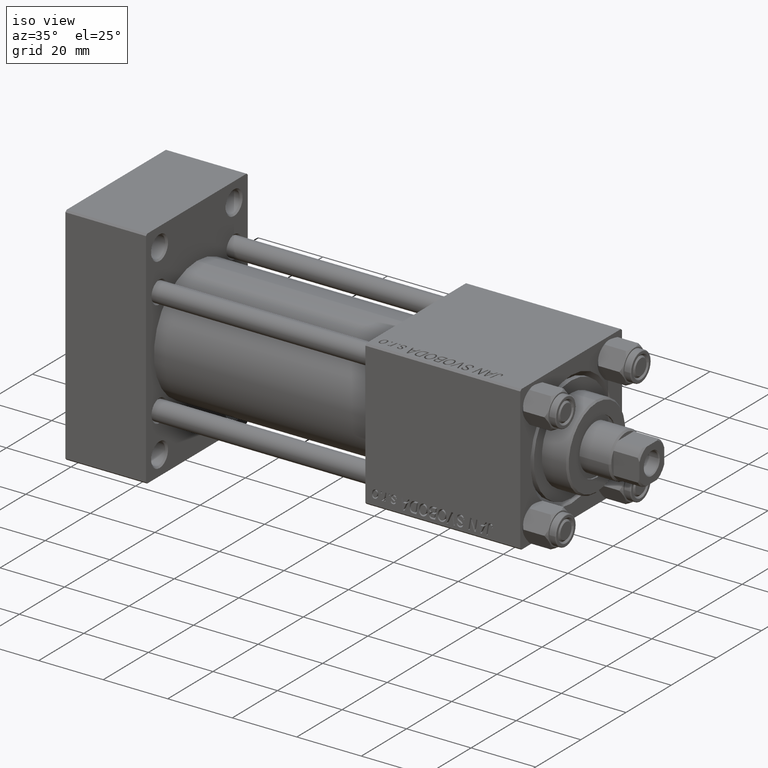
[diagram: clean part render]
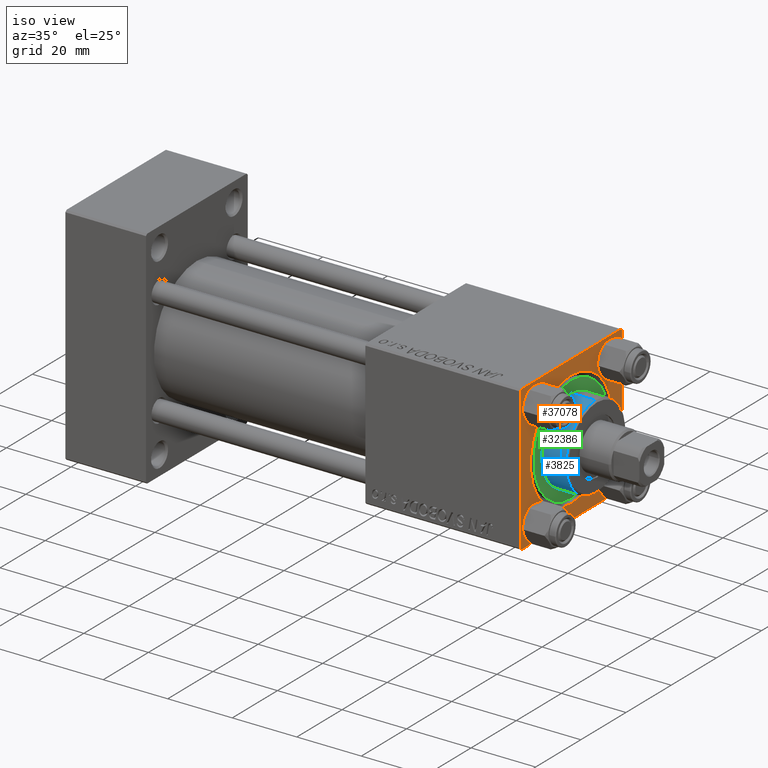
[diagram: same view with three faces highlighted in distinct colors, each labeled with its STEP entity id]
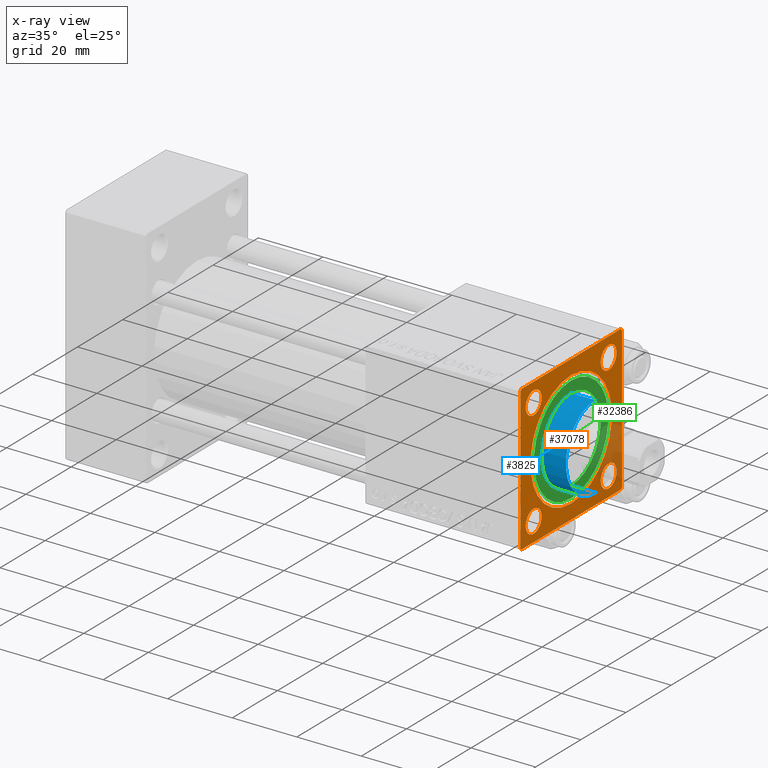
[diagram: x-ray of the same camera — body ghosted, the three highlighted faces saturated]
A machine part, iso view with three faces highlighted in distinct colors.
The next image is the same camera in x-ray (body ghosted, the three faces saturated) — at least one of them is partly hidden behind the body in this view.
Their STEP definitions:

[orange] entity #37078 — the highlighted planar face has unit normal (-1, 0, 0).
#421 = VERTEX_POINT ( 'NONE', #45693 ) ;
#465 = ORIENTED_EDGE ( 'NONE', *, *, #37097, .T. ) ;
#590 = CARTESIAN_POINT ( 'NONE',  ( 141.0000000000000000, -16.59999999999999076, -16.60000000000000853 ) ) ;
#1348 = AXIS2_PLACEMENT_3D ( 'NONE', #10094, #28100, #32834 ) ;
#1581 = ORIENTED_EDGE ( 'NONE', *, *, #31186, .T. ) ;
#2479 = FACE_BOUND ( 'NONE', #6831, .T. ) ;
#2649 = VERTEX_POINT ( 'NONE', #18357 ) ;
#3163 = ORIENTED_EDGE ( 'NONE', *, *, #4531, .T. ) ;
#4026 = EDGE_CURVE ( 'NONE', #45760, #421, #37947, .T. ) ;
#4219 = CARTESIAN_POINT ( 'NONE',  ( 141.0000000000000000, 22.50000000000000355, 22.50000000000000355 ) ) ;
#4303 = EDGE_CURVE ( 'NONE', #13344, #33325, #8324, .T. ) ;
#4531 = EDGE_CURVE ( 'NONE', #22749, #49501, #22036, .T. ) ;
#4704 = DIRECTION ( 'NONE',  ( -1.000000000000000000, 0.000000000000000000, -0.000000000000000000 ) ) ;
#4739 = LINE ( 'NONE', #35793, #49555 ) ;
#6005 = DIRECTION ( 'NONE',  ( -1.000000000000000000, 0.000000000000000000, -0.000000000000000000 ) ) ;
#6831 = EDGE_LOOP ( 'NONE', ( #25632, #24927 ) ) ;
#7315 = CARTESIAN_POINT ( 'NONE',  ( 141.0000000000000000, 16.59999999999999787, 16.60000000000000497 ) ) ;
#7625 = CARTESIAN_POINT ( 'NONE',  ( 141.0000000000000000, 22.50000000000000355, 22.50000000000000355 ) ) ;
#7854 = CARTESIAN_POINT ( 'NONE',  ( 141.0000000000000000, 0.000000000000000000, 0.000000000000000000 ) ) ;
#8324 = CIRCLE ( 'NONE', #30903, 3.500000000000003109 ) ;
#8398 = EDGE_CURVE ( 'NONE', #33750, #25118, #20079, .T. ) ;
#9645 = CARTESIAN_POINT ( 'NONE',  ( 141.0000000000000000, 16.59999999999999787, 16.60000000000000497 ) ) ;
#10058 = CIRCLE ( 'NONE', #21333, 3.500000000000003109 ) ;
#10094 = CARTESIAN_POINT ( 'NONE',  ( 141.0000000000000000, 0.000000000000000000, 0.000000000000000000 ) ) ;
#10303 = DIRECTION ( 'NONE',  ( -0.000000000000000000, 0.000000000000000000, 1.000000000000000000 ) ) ;
#10668 = EDGE_CURVE ( 'NONE', #33325, #13344, #39155, .T. ) ;
#10927 = AXIS2_PLACEMENT_3D ( 'NONE', #45394, #6005, #10303 ) ;
#11504 = CARTESIAN_POINT ( 'NONE',  ( 141.0000000000000000, -16.59999999999999076, 20.10000000000000853 ) ) ;
#11738 = AXIS2_PLACEMENT_3D ( 'NONE', #9645, #25036, #20751 ) ;
#11940 = AXIS2_PLACEMENT_3D ( 'NONE', #32397, #17743, #28865 ) ;
#12310 = DIRECTION ( 'NONE',  ( 0.000000000000000000, 0.000000000000000000, -1.000000000000000000 ) ) ;
#12459 = CARTESIAN_POINT ( 'NONE',  ( 141.0000000000000000, 16.59999999999999787, 20.10000000000000853 ) ) ;
#13154 = CARTESIAN_POINT ( 'NONE',  ( 141.0000000000000000, 16.59999999999999787, -13.10000000000000142 ) ) ;
#13344 = VERTEX_POINT ( 'NONE', #12459 ) ;
#13395 = ORIENTED_EDGE ( 'NONE', *, *, #10668, .T. ) ;
#13420 = EDGE_CURVE ( 'NONE', #27967, #43355, #46535, .T. ) ;
#13965 = CARTESIAN_POINT ( 'NONE',  ( 141.0000000000000000, -16.59999999999999076, -13.10000000000000320 ) ) ;
#14142 = CARTESIAN_POINT ( 'NONE',  ( 141.0000000000000000, -16.59999999999999076, 16.60000000000000853 ) ) ;
#14333 = PLANE ( 'NONE',  #10927 ) ;
#14559 = EDGE_LOOP ( 'NONE', ( #13395, #44836 ) ) ;
#14577 = FACE_BOUND ( 'NONE', #21387, .T. ) ;
#15011 = AXIS2_PLACEMENT_3D ( 'NONE', #14142, #15125, #38372 ) ;
#15125 = DIRECTION ( 'NONE',  ( -1.000000000000000000, 0.000000000000000000, -0.000000000000000000 ) ) ;
#15415 = CARTESIAN_POINT ( 'NONE',  ( 141.0000000000000000, 22.50000000000000355, -22.49999999999999645 ) ) ;
#16050 = CARTESIAN_POINT ( 'NONE',  ( 141.0000000000000000, -22.49999999999999645, 22.00000000000002132 ) ) ;
#16768 = CARTESIAN_POINT ( 'NONE',  ( 141.0000000000000000, -21.99999999999998224, -22.50000000000000000 ) ) ;
#16882 = DIRECTION ( 'NONE',  ( -0.000000000000000000, 0.7071067811865573427, 0.7071067811865378028 ) ) ;
#17543 = AXIS2_PLACEMENT_3D ( 'NONE', #20580, #4704, #19843 ) ;
#17743 = DIRECTION ( 'NONE',  ( -1.000000000000000000, 0.000000000000000000, -0.000000000000000000 ) ) ;
#18100 = LINE ( 'NONE', #33529, #18158 ) ;
#18158 = VECTOR ( 'NONE', #37820, 1000.000000000000114 ) ;
#18357 = CARTESIAN_POINT ( 'NONE',  ( 141.0000000000000000, -16.59999999999999076, -20.10000000000000853 ) ) ;
#18361 = CARTESIAN_POINT ( 'NONE',  ( 141.0000000000000000, -22.49999999999999645, 22.00000000000002132 ) ) ;
#18492 = CARTESIAN_POINT ( 'NONE',  ( 141.0000000000000000, -21.99999999999996803, -22.50000000000000000 ) ) ;
#18653 = EDGE_LOOP ( 'NONE', ( #22084, #26046 ) ) ;
#18722 = DIRECTION ( 'NONE',  ( 0.000000000000000000, 0.000000000000000000, 1.000000000000000000 ) ) ;
#19220 = ORIENTED_EDGE ( 'NONE', *, *, #46702, .T. ) ;
#19242 = CARTESIAN_POINT ( 'NONE',  ( 141.0000000000000000, -16.59999999999999076, -16.60000000000000853 ) ) ;
#19606 = DIRECTION ( 'NONE',  ( 0.000000000000000000, 0.000000000000000000, -1.000000000000000000 ) ) ;
#19843 = DIRECTION ( 'NONE',  ( 0.000000000000000000, 0.000000000000000000, 1.000000000000000000 ) ) ;
#20079 = LINE ( 'NONE', #16768, #35081 ) ;
#20580 = CARTESIAN_POINT ( 'NONE',  ( 141.0000000000000000, 16.59999999999999787, -16.60000000000000497 ) ) ;
#20583 = VERTEX_POINT ( 'NONE', #13154 ) ;
#20684 = CIRCLE ( 'NONE', #15011, 3.500000000000003109 ) ;
#20751 = DIRECTION ( 'NONE',  ( 0.000000000000000000, 0.000000000000000000, 1.000000000000000000 ) ) ;
#20924 = CARTESIAN_POINT ( 'NONE',  ( 141.0000000000000000, -16.59999999999999076, 16.60000000000000853 ) ) ;
#20966 = ORIENTED_EDGE ( 'NONE', *, *, #47186, .T. ) ;
#21229 = VECTOR ( 'NONE', #16882, 1000.000000000000000 ) ;
#21296 = AXIS2_PLACEMENT_3D ( 'NONE', #7854, #23252, #31340 ) ;
#21333 = AXIS2_PLACEMENT_3D ( 'NONE', #590, #39729, #23566 ) ;
#21387 = EDGE_LOOP ( 'NONE', ( #20966, #19220 ) ) ;
#21589 = EDGE_CURVE ( 'NONE', #421, #22721, #32537, .T. ) ;
#21763 = ORIENTED_EDGE ( 'NONE', *, *, #33984, .T. ) ;
#21897 = FACE_BOUND ( 'NONE', #27546, .T. ) ;
#22036 = CIRCLE ( 'NONE', #38976, 3.500000000000003109 ) ;
#22084 = ORIENTED_EDGE ( 'NONE', *, *, #39187, .T. ) ;
#22145 = EDGE_CURVE ( 'NONE', #45507, #25118, #49050, .T. ) ;
#22341 = DIRECTION ( 'NONE',  ( -1.000000000000000000, 0.000000000000000000, -0.000000000000000000 ) ) ;
#22721 = VERTEX_POINT ( 'NONE', #16050 ) ;
#22749 = VERTEX_POINT ( 'NONE', #11504 ) ;
#23252 = DIRECTION ( 'NONE',  ( -1.000000000000000000, 0.000000000000000000, -0.000000000000000000 ) ) ;
#23376 = CARTESIAN_POINT ( 'NONE',  ( 141.0000000000000000, 22.00000000000000355, 22.50000000000000355 ) ) ;
#23566 = DIRECTION ( 'NONE',  ( 0.000000000000000000, 0.000000000000000000, 1.000000000000000000 ) ) ;
#23951 = CARTESIAN_POINT ( 'NONE',  ( 141.0000000000000000, 0.000000000000000000, -18.00000000000001421 ) ) ;
#24464 = DIRECTION ( 'NONE',  ( 0.000000000000000000, 0.000000000000000000, 1.000000000000000000 ) ) ;
#24862 = VECTOR ( 'NONE', #19606, 1000.000000000000000 ) ;
#24927 = ORIENTED_EDGE ( 'NONE', *, *, #39746, .T. ) ;
#25036 = DIRECTION ( 'NONE',  ( -1.000000000000000000, 0.000000000000000000, -0.000000000000000000 ) ) ;
#25118 = VERTEX_POINT ( 'NONE', #18492 ) ;
#25625 = CIRCLE ( 'NONE', #11940, 3.500000000000003109 ) ;
#25632 = ORIENTED_EDGE ( 'NONE', *, *, #38688, .T. ) ;
#25747 = VERTEX_POINT ( 'NONE', #49711 ) ;
#26046 = ORIENTED_EDGE ( 'NONE', *, *, #13420, .T. ) ;
#26225 = ORIENTED_EDGE ( 'NONE', *, *, #22145, .F. ) ;
#27546 = EDGE_LOOP ( 'NONE', ( #41335, #3163 ) ) ;
#27776 = ORIENTED_EDGE ( 'NONE', *, *, #8398, .T. ) ;
#27967 = VERTEX_POINT ( 'NONE', #28501 ) ;
#28100 = DIRECTION ( 'NONE',  ( -1.000000000000000000, 0.000000000000000000, -0.000000000000000000 ) ) ;
#28256 = CARTESIAN_POINT ( 'NONE',  ( 141.0000000000000000, -22.49999999999999645, -21.99999999999996447 ) ) ;
#28501 = CARTESIAN_POINT ( 'NONE',  ( 141.0000000000000000, 2.204364238465237794E-15, 18.00000000000001421 ) ) ;
#28865 = DIRECTION ( 'NONE',  ( 0.000000000000000000, 0.000000000000000000, 1.000000000000000000 ) ) ;
#28968 = CARTESIAN_POINT ( 'NONE',  ( 141.0000000000000000, 22.00000000000000355, -22.49999999999999645 ) ) ;
#29643 = EDGE_LOOP ( 'NONE', ( #21763, #27776, #26225, #1581, #49200, #465, #45753, #35073 ) ) ;
#30541 = DIRECTION ( 'NONE',  ( 0.000000000000000000, 0.000000000000000000, 1.000000000000000000 ) ) ;
#30614 = CARTESIAN_POINT ( 'NONE',  ( 141.0000000000000000, -16.59999999999999076, 13.10000000000000320 ) ) ;
#30903 = AXIS2_PLACEMENT_3D ( 'NONE', #7315, #38386, #30541 ) ;
#30998 = AXIS2_PLACEMENT_3D ( 'NONE', #19242, #42489, #18722 ) ;
#31186 = EDGE_CURVE ( 'NONE', #45507, #41942, #42490, .T. ) ;
#31340 = DIRECTION ( 'NONE',  ( 0.000000000000000000, 0.000000000000000000, 1.000000000000000000 ) ) ;
#32397 = CARTESIAN_POINT ( 'NONE',  ( 141.0000000000000000, 16.59999999999999787, -16.60000000000000497 ) ) ;
#32537 = LINE ( 'NONE', #18361, #36199 ) ;
#32834 = DIRECTION ( 'NONE',  ( 0.000000000000000000, 0.000000000000000000, 1.000000000000000000 ) ) ;
#33325 = VERTEX_POINT ( 'NONE', #33974 ) ;
#33424 = CIRCLE ( 'NONE', #30998, 3.500000000000003109 ) ;
#33529 = CARTESIAN_POINT ( 'NONE',  ( 141.0000000000000000, 22.00000000000000355, 22.50000000000000355 ) ) ;
#33750 = VERTEX_POINT ( 'NONE', #28256 ) ;
#33974 = CARTESIAN_POINT ( 'NONE',  ( 141.0000000000000000, 16.59999999999999787, 13.10000000000000142 ) ) ;
#33984 = EDGE_CURVE ( 'NONE', #22721, #33750, #4739, .T. ) ;
#35073 = ORIENTED_EDGE ( 'NONE', *, *, #21589, .T. ) ;
#35081 = VECTOR ( 'NONE', #36246, 1000.000000000000000 ) ;
#35793 = CARTESIAN_POINT ( 'NONE',  ( 141.0000000000000000, -22.49999999999999645, 22.49999999999999289 ) ) ;
#35945 = CARTESIAN_POINT ( 'NONE',  ( 141.0000000000000000, 16.59999999999999787, -20.10000000000000853 ) ) ;
#36199 = VECTOR ( 'NONE', #42103, 1000.000000000000114 ) ;
#36246 = DIRECTION ( 'NONE',  ( 0.000000000000000000, 0.7071067811865426878, -0.7071067811865524577 ) ) ;
#36446 = CARTESIAN_POINT ( 'NONE',  ( 141.0000000000000000, 22.50000000000000355, -21.99999999999999645 ) ) ;
#37078 = ADVANCED_FACE ( 'NONE', ( #2479, #14577, #37318, #21897, #44647, #44905 ), #14333, .F. ) ;
#37097 = EDGE_CURVE ( 'NONE', #25747, #45760, #18100, .T. ) ;
#37318 = FACE_BOUND ( 'NONE', #14559, .T. ) ;
#37670 = DIRECTION ( 'NONE',  ( 0.000000000000000000, -1.000000000000000000, -7.709882115452476934E-17 ) ) ;
#37800 = VECTOR ( 'NONE', #37670, 1000.000000000000000 ) ;
#37820 = DIRECTION ( 'NONE',  ( 0.000000000000000000, -0.7071067811865474617, 0.7071067811865474617 ) ) ;
#37947 = LINE ( 'NONE', #7625, #45382 ) ;
#38372 = DIRECTION ( 'NONE',  ( 0.000000000000000000, 0.000000000000000000, 1.000000000000000000 ) ) ;
#38386 = DIRECTION ( 'NONE',  ( -1.000000000000000000, 0.000000000000000000, -0.000000000000000000 ) ) ;
#38501 = CIRCLE ( 'NONE', #17543, 3.500000000000003109 ) ;
#38637 = VERTEX_POINT ( 'NONE', #13965 ) ;
#38688 = EDGE_CURVE ( 'NONE', #2649, #38637, #33424, .T. ) ;
#38827 = LINE ( 'NONE', #4219, #24862 ) ;
#38976 = AXIS2_PLACEMENT_3D ( 'NONE', #20924, #22341, #24464 ) ;
#39155 = CIRCLE ( 'NONE', #11738, 3.500000000000003109 ) ;
#39187 = EDGE_CURVE ( 'NONE', #43355, #27967, #43095, .T. ) ;
#39729 = DIRECTION ( 'NONE',  ( -1.000000000000000000, 0.000000000000000000, -0.000000000000000000 ) ) ;
#39746 = EDGE_CURVE ( 'NONE', #38637, #2649, #10058, .T. ) ;
#41335 = ORIENTED_EDGE ( 'NONE', *, *, #44056, .T. ) ;
#41942 = VERTEX_POINT ( 'NONE', #36446 ) ;
#42103 = DIRECTION ( 'NONE',  ( -0.000000000000000000, -0.7071067811865573427, -0.7071067811865376918 ) ) ;
#42489 = DIRECTION ( 'NONE',  ( -1.000000000000000000, 0.000000000000000000, -0.000000000000000000 ) ) ;
#42490 = LINE ( 'NONE', #43919, #21229 ) ;
#42780 = VERTEX_POINT ( 'NONE', #35945 ) ;
#43095 = CIRCLE ( 'NONE', #21296, 18.00000000000001421 ) ;
#43355 = VERTEX_POINT ( 'NONE', #23951 ) ;
#43919 = CARTESIAN_POINT ( 'NONE',  ( 141.0000000000000000, 22.50000000000000355, -22.00000000000001066 ) ) ;
#44056 = EDGE_CURVE ( 'NONE', #49501, #22749, #20684, .T. ) ;
#44647 = FACE_BOUND ( 'NONE', #18653, .T. ) ;
#44836 = ORIENTED_EDGE ( 'NONE', *, *, #4303, .T. ) ;
#44905 = FACE_OUTER_BOUND ( 'NONE', #29643, .T. ) ;
#45382 = VECTOR ( 'NONE', #45525, 1000.000000000000000 ) ;
#45394 = CARTESIAN_POINT ( 'NONE',  ( 141.0000000000000000, 0.000000000000000000, 0.000000000000000000 ) ) ;
#45507 = VERTEX_POINT ( 'NONE', #28968 ) ;
#45525 = DIRECTION ( 'NONE',  ( 0.000000000000000000, -1.000000000000000000, -2.312964634635742957E-16 ) ) ;
#45693 = CARTESIAN_POINT ( 'NONE',  ( 141.0000000000000000, -21.99999999999999645, 22.49999999999999289 ) ) ;
#45753 = ORIENTED_EDGE ( 'NONE', *, *, #4026, .T. ) ;
#45760 = VERTEX_POINT ( 'NONE', #23376 ) ;
#46535 = CIRCLE ( 'NONE', #1348, 18.00000000000001421 ) ;
#46702 = EDGE_CURVE ( 'NONE', #20583, #42780, #38501, .T. ) ;
#47186 = EDGE_CURVE ( 'NONE', #42780, #20583, #25625, .T. ) ;
#48191 = EDGE_CURVE ( 'NONE', #25747, #41942, #38827, .T. ) ;
#49050 = LINE ( 'NONE', #15415, #37800 ) ;
#49200 = ORIENTED_EDGE ( 'NONE', *, *, #48191, .F. ) ;
#49501 = VERTEX_POINT ( 'NONE', #30614 ) ;
#49555 = VECTOR ( 'NONE', #12310, 1000.000000000000000 ) ;
#49711 = CARTESIAN_POINT ( 'NONE',  ( 141.0000000000000000, 22.50000000000000355, 22.00000000000000355 ) ) ;

[blue] entity #3825 — the highlighted cylindrical surface (partial cylindrical patch) has radius 13 mm, axis along (-1, -0, 0).
#269 = EDGE_CURVE ( 'NONE', #25072, #20713, #45984, .T. ) ;
#1609 = DIRECTION ( 'NONE',  ( -1.000000000000000000, 0.000000000000000000, 0.000000000000000000 ) ) ;
#2373 = CARTESIAN_POINT ( 'NONE',  ( 13.00000000000000178, 1.592040838891559293E-15, 36.20000000000000995 ) ) ;
#3825 = ADVANCED_FACE ( 'NONE', ( #43050 ), #24328, .T. ) ;
#5259 = VECTOR ( 'NONE', #23244, 1000.000000000000000 ) ;
#8750 = CIRCLE ( 'NONE', #36980, 13.00000000000000178 ) ;
#10293 = ORIENTED_EDGE ( 'NONE', *, *, #10783, .T. ) ;
#10663 = CARTESIAN_POINT ( 'NONE',  ( 0.000000000000000000, 0.000000000000000000, 28.69999999999999929 ) ) ;
#10783 = EDGE_CURVE ( 'NONE', #25072, #15116, #26253, .T. ) ;
#11599 = CARTESIAN_POINT ( 'NONE',  ( 13.00000000000000178, 1.592040838891559293E-15, 28.69999999999999929 ) ) ;
#11871 = EDGE_LOOP ( 'NONE', ( #27307, #10293, #42198, #47815 ) ) ;
#15116 = VERTEX_POINT ( 'NONE', #19635 ) ;
#15185 = DIRECTION ( 'NONE',  ( 1.000000000000000000, 0.000000000000000000, 0.000000000000000000 ) ) ;
#15658 = CARTESIAN_POINT ( 'NONE',  ( 13.00000000000000178, 1.592040838891559293E-15, 36.69999999999999574 ) ) ;
#16642 = LINE ( 'NONE', #44182, #45730 ) ;
#17397 = DIRECTION ( 'NONE',  ( 1.000000000000000000, 0.000000000000000000, 0.000000000000000000 ) ) ;
#18364 = CARTESIAN_POINT ( 'NONE',  ( -13.00000000000000178, 0.000000000000000000, 28.69999999999999929 ) ) ;
#18378 = EDGE_CURVE ( 'NONE', #15116, #33046, #16642, .T. ) ;
#19635 = CARTESIAN_POINT ( 'NONE',  ( -13.00000000000000178, 0.000000000000000000, 36.20000000000000995 ) ) ;
#20713 = VERTEX_POINT ( 'NONE', #11599 ) ;
#21953 = EDGE_CURVE ( 'NONE', #33046, #20713, #8750, .T. ) ;
#23244 = DIRECTION ( 'NONE',  ( -0.000000000000000000, -0.000000000000000000, -1.000000000000000000 ) ) ;
#24328 = CYLINDRICAL_SURFACE ( 'NONE', #41346, 13.00000000000000178 ) ;
#24978 = CARTESIAN_POINT ( 'NONE',  ( 0.000000000000000000, 0.000000000000000000, 36.20000000000000995 ) ) ;
#25072 = VERTEX_POINT ( 'NONE', #2373 ) ;
#26253 = CIRCLE ( 'NONE', #49630, 13.00000000000000178 ) ;
#27307 = ORIENTED_EDGE ( 'NONE', *, *, #269, .F. ) ;
#32306 = DIRECTION ( 'NONE',  ( -0.000000000000000000, -0.000000000000000000, -1.000000000000000000 ) ) ;
#32409 = CARTESIAN_POINT ( 'NONE',  ( 0.000000000000000000, 0.000000000000000000, 36.69999999999999574 ) ) ;
#33046 = VERTEX_POINT ( 'NONE', #18364 ) ;
#36223 = DIRECTION ( 'NONE',  ( -0.000000000000000000, -0.000000000000000000, -1.000000000000000000 ) ) ;
#36980 = AXIS2_PLACEMENT_3D ( 'NONE', #10663, #49806, #15185 ) ;
#41346 = AXIS2_PLACEMENT_3D ( 'NONE', #32409, #36223, #1609 ) ;
#42198 = ORIENTED_EDGE ( 'NONE', *, *, #18378, .T. ) ;
#43050 = FACE_OUTER_BOUND ( 'NONE', #11871, .T. ) ;
#44182 = CARTESIAN_POINT ( 'NONE',  ( -13.00000000000000178, 0.000000000000000000, 36.69999999999999574 ) ) ;
#45730 = VECTOR ( 'NONE', #32306, 1000.000000000000000 ) ;
#45984 = LINE ( 'NONE', #15658, #5259 ) ;
#47815 = ORIENTED_EDGE ( 'NONE', *, *, #21953, .T. ) ;
#48236 = DIRECTION ( 'NONE',  ( 0.000000000000000000, 0.000000000000000000, -1.000000000000000000 ) ) ;
#49630 = AXIS2_PLACEMENT_3D ( 'NONE', #24978, #48236, #17397 ) ;
#49806 = DIRECTION ( 'NONE',  ( 0.000000000000000000, 0.000000000000000000, 1.000000000000000000 ) ) ;

[green] entity #32386 — the highlighted planar face has unit normal (1, 0, 0).
#47 = CARTESIAN_POINT ( 'NONE',  ( 0.000000000000000000, 0.000000000000000000, 28.69999999999999929 ) ) ;
#3299 = FACE_OUTER_BOUND ( 'NONE', #48264, .T. ) ;
#6170 = CARTESIAN_POINT ( 'NONE',  ( -16.50000000000000000, 0.000000000000000000, 28.69999999999999929 ) ) ;
#6536 = EDGE_LOOP ( 'NONE', ( #31092, #14990 ) ) ;
#7085 = FACE_BOUND ( 'NONE', #6536, .T. ) ;
#7328 = DIRECTION ( 'NONE',  ( 0.000000000000000000, 0.000000000000000000, 1.000000000000000000 ) ) ;
#7621 = DIRECTION ( 'NONE',  ( 1.000000000000000000, 0.000000000000000000, 0.000000000000000000 ) ) ;
#8750 = CIRCLE ( 'NONE', #36980, 13.00000000000000178 ) ;
#10663 = CARTESIAN_POINT ( 'NONE',  ( 0.000000000000000000, 0.000000000000000000, 28.69999999999999929 ) ) ;
#11599 = CARTESIAN_POINT ( 'NONE',  ( 13.00000000000000178, 1.592040838891559293E-15, 28.69999999999999929 ) ) ;
#11812 = AXIS2_PLACEMENT_3D ( 'NONE', #22123, #21132, #25416 ) ;
#14990 = ORIENTED_EDGE ( 'NONE', *, *, #37936, .F. ) ;
#15185 = DIRECTION ( 'NONE',  ( 1.000000000000000000, 0.000000000000000000, 0.000000000000000000 ) ) ;
#16081 = EDGE_CURVE ( 'NONE', #27090, #32733, #33589, .T. ) ;
#17558 = DIRECTION ( 'NONE',  ( 0.000000000000000000, 0.000000000000000000, 1.000000000000000000 ) ) ;
#18364 = CARTESIAN_POINT ( 'NONE',  ( -13.00000000000000178, 0.000000000000000000, 28.69999999999999929 ) ) ;
#18677 = CARTESIAN_POINT ( 'NONE',  ( 0.000000000000000000, 0.000000000000000000, 28.69999999999999929 ) ) ;
#18740 = CARTESIAN_POINT ( 'NONE',  ( 16.50000000000000000, 2.020667218593133100E-15, 28.69999999999999929 ) ) ;
#18929 = DIRECTION ( 'NONE',  ( 1.000000000000000000, 0.000000000000000000, -0.000000000000000000 ) ) ;
#20504 = CIRCLE ( 'NONE', #47131, 16.50000000000000000 ) ;
#20577 = AXIS2_PLACEMENT_3D ( 'NONE', #47, #34660, #7621 ) ;
#20713 = VERTEX_POINT ( 'NONE', #11599 ) ;
#21132 = DIRECTION ( 'NONE',  ( 0.000000000000000000, 0.000000000000000000, 1.000000000000000000 ) ) ;
#21953 = EDGE_CURVE ( 'NONE', #33046, #20713, #8750, .T. ) ;
#22075 = ORIENTED_EDGE ( 'NONE', *, *, #38272, .T. ) ;
#22123 = CARTESIAN_POINT ( 'NONE',  ( 0.000000000000000000, 0.000000000000000000, 28.69999999999999929 ) ) ;
#25416 = DIRECTION ( 'NONE',  ( 1.000000000000000000, 0.000000000000000000, 0.000000000000000000 ) ) ;
#27090 = VERTEX_POINT ( 'NONE', #6170 ) ;
#31092 = ORIENTED_EDGE ( 'NONE', *, *, #21953, .F. ) ;
#32386 = ADVANCED_FACE ( 'NONE', ( #7085, #3299 ), #45726, .T. ) ;
#32733 = VERTEX_POINT ( 'NONE', #18740 ) ;
#33046 = VERTEX_POINT ( 'NONE', #18364 ) ;
#33224 = CARTESIAN_POINT ( 'NONE',  ( 0.000000000000000000, 0.000000000000000000, 28.69999999999999929 ) ) ;
#33589 = CIRCLE ( 'NONE', #11812, 16.50000000000000000 ) ;
#34660 = DIRECTION ( 'NONE',  ( 0.000000000000000000, 0.000000000000000000, 1.000000000000000000 ) ) ;
#36980 = AXIS2_PLACEMENT_3D ( 'NONE', #10663, #49806, #15185 ) ;
#37027 = DIRECTION ( 'NONE',  ( 1.000000000000000000, 0.000000000000000000, 0.000000000000000000 ) ) ;
#37936 = EDGE_CURVE ( 'NONE', #20713, #33046, #42365, .T. ) ;
#38272 = EDGE_CURVE ( 'NONE', #32733, #27090, #20504, .T. ) ;
#39028 = AXIS2_PLACEMENT_3D ( 'NONE', #18677, #7328, #18929 ) ;
#42365 = CIRCLE ( 'NONE', #20577, 13.00000000000000178 ) ;
#45726 = PLANE ( 'NONE',  #39028 ) ;
#47131 = AXIS2_PLACEMENT_3D ( 'NONE', #33224, #17558, #37027 ) ;
#48084 = ORIENTED_EDGE ( 'NONE', *, *, #16081, .T. ) ;
#48264 = EDGE_LOOP ( 'NONE', ( #48084, #22075 ) ) ;
#49806 = DIRECTION ( 'NONE',  ( 0.000000000000000000, 0.000000000000000000, 1.000000000000000000 ) ) ;